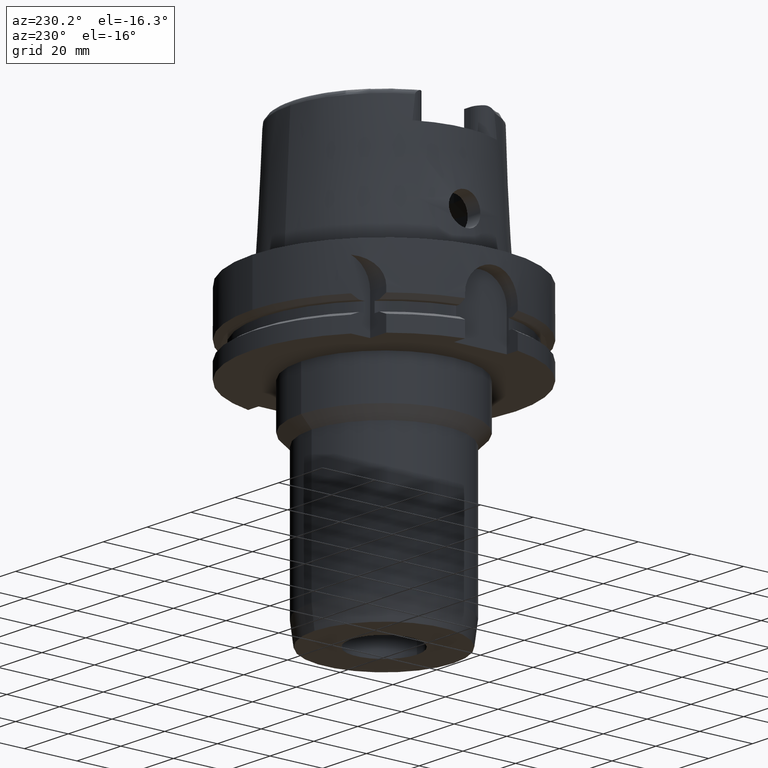
[diagram: clean part render]
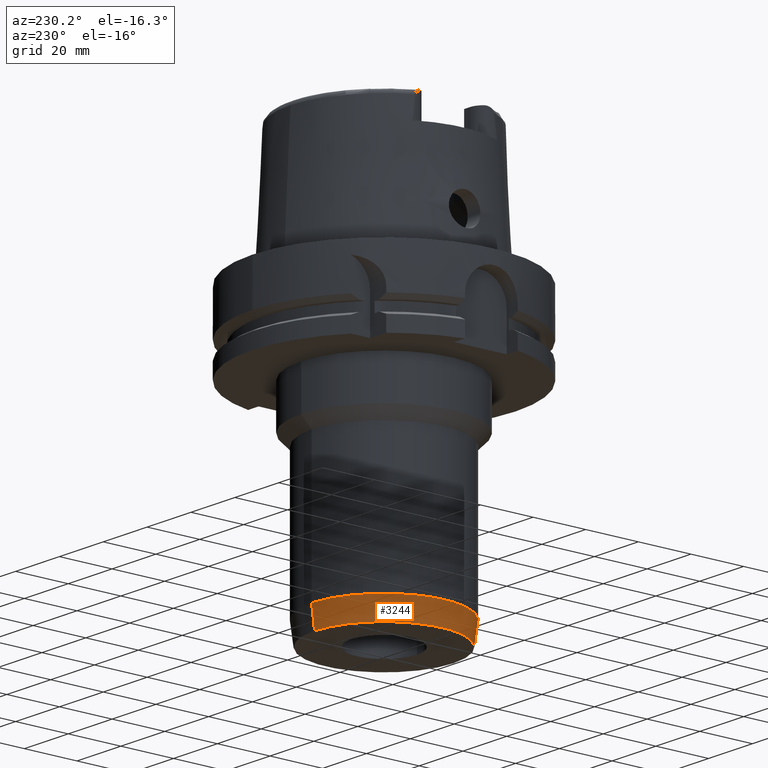
[diagram: same view with one face highlighted and labeled with its STEP entity id]
A machine part, auxiliary view. The second image highlights one B-rep face of the part: STEP entity #3244.
In plain terms, the highlighted conical surface has half-angle 7.5 deg.
Its self-contained STEP definition (entity closure, byte-faithful):
#1025=CARTESIAN_POINT('',(0.E0,0.E0,-1.1E2));
#1026=DIRECTION('',(0.E0,0.E0,1.E0));
#1027=DIRECTION('',(0.E0,1.E0,0.E0));
#1028=AXIS2_PLACEMENT_3D('',#1025,#1026,#1027);
#1049=DIRECTION('',(0.E0,-1.305261922203E-1,-9.914448613738E-1));
#1050=VECTOR('',#1049,8.362306303663E0);
#1051=CARTESIAN_POINT('',(0.E0,2.75E1,-1.017092343860E2));
#1052=LINE('',#1051,#1050);
#1064=CARTESIAN_POINT('',(0.E0,0.E0,-1.017092343860E2));
#1065=DIRECTION('',(0.E0,0.E0,1.E0));
#1066=DIRECTION('',(0.E0,1.E0,0.E0));
#1067=AXIS2_PLACEMENT_3D('',#1064,#1065,#1066);
#1072=DIRECTION('',(0.E0,1.305261922203E-1,-9.914448613738E-1));
#1073=VECTOR('',#1072,8.362306303663E0);
#1074=CARTESIAN_POINT('',(0.E0,-2.75E1,-1.017092343860E2));
#1075=LINE('',#1074,#1073);
#2326=CARTESIAN_POINT('',(0.E0,-2.64085E1,-1.1E2));
#2327=CARTESIAN_POINT('',(0.E0,2.64085E1,-1.1E2));
#2328=VERTEX_POINT('',#2326);
#2329=VERTEX_POINT('',#2327);
#2330=CARTESIAN_POINT('',(0.E0,2.75E1,-1.017092343860E2));
#2331=VERTEX_POINT('',#2330);
#2332=CARTESIAN_POINT('',(0.E0,-2.75E1,-1.017092343860E2));
#2333=VERTEX_POINT('',#2332);
#3232=CARTESIAN_POINT('',(0.E0,0.E0,-1.058546171930E2));
#3233=DIRECTION('',(0.E0,0.E0,1.E0));
#3234=DIRECTION('',(0.E0,1.E0,0.E0));
#3235=AXIS2_PLACEMENT_3D('',#3232,#3233,#3234);
#3236=CONICAL_SURFACE('',#3235,2.695425E1,7.5E0);
#3237=ORIENTED_EDGE('',*,*,#3222,.F.);
#3239=ORIENTED_EDGE('',*,*,#3238,.T.);
#3240=ORIENTED_EDGE('',*,*,#3225,.T.);
#3241=ORIENTED_EDGE('',*,*,#3208,.F.);
#3242=EDGE_LOOP('',(#3237,#3239,#3240,#3241));
#3243=FACE_OUTER_BOUND('',#3242,.F.);
#1029=CIRCLE('',#1028,2.64085E1);
#1068=CIRCLE('',#1067,2.75E1);
#3208=EDGE_CURVE('',#2329,#2328,#1029,.T.);
#3222=EDGE_CURVE('',#2331,#2329,#1052,.T.);
#3225=EDGE_CURVE('',#2333,#2328,#1075,.T.);
#3238=EDGE_CURVE('',#2331,#2333,#1068,.T.);
#3244=ADVANCED_FACE('',(#3243),#3236,.T.);